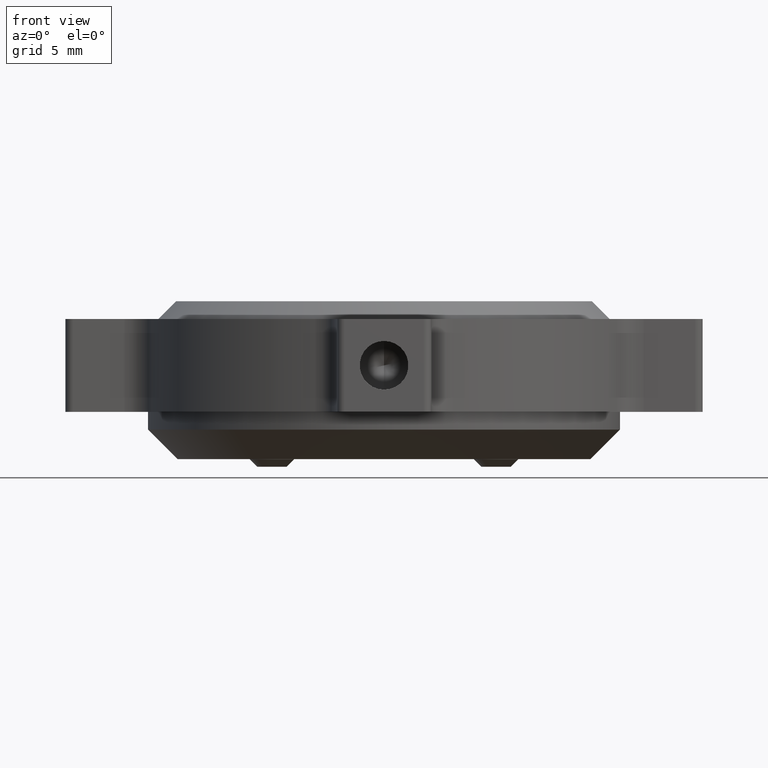
[diagram: clean part render]
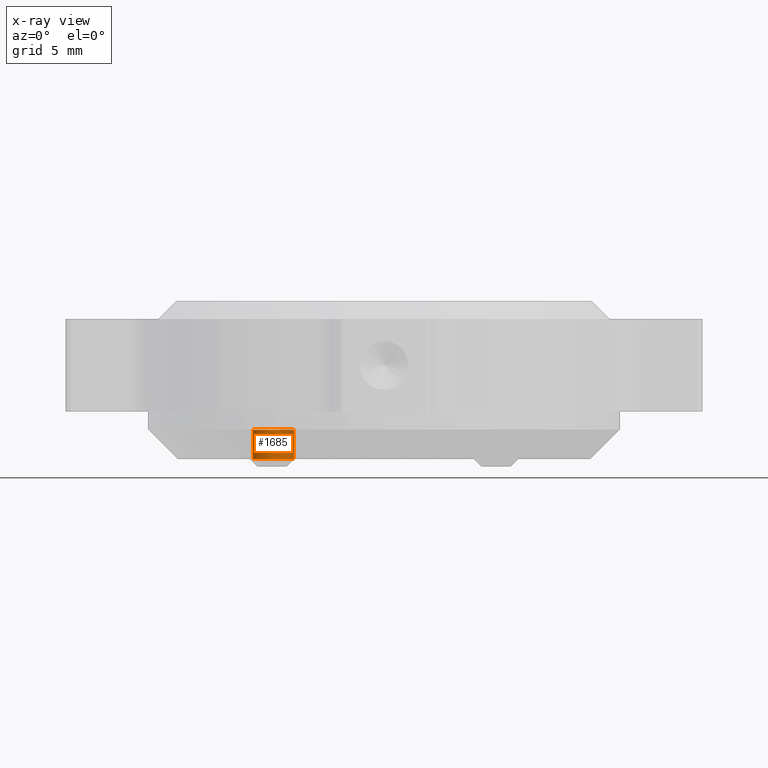
[diagram: x-ray — body ghosted, one internal face saturated and labeled with its STEP entity id]
A machine part, front view, then the same camera in x-ray: the body is ghosted and one INTERNAL B-rep face — a face not visible from any outside direction — is saturated and labeled: STEP entity #1685.
In plain terms, the highlighted cylindrical surface (edge-blend (fillet) strip) has radius 1.5 mm, axis along (0, 0, 1).
Its self-contained STEP definition (entity closure, byte-faithful):
#7 = CARTESIAN_POINT ( 'NONE',  ( -8.233138786382069085, 2.161662557750398950, 23.32967437858455639 ) ) ;
#21 = VERTEX_POINT ( 'NONE', #2503 ) ;
#73 = VERTEX_POINT ( 'NONE', #167 ) ;
#93 = EDGE_LOOP ( 'NONE', ( #753, #997, #1690, #1759 ) ) ;
#167 = CARTESIAN_POINT ( 'NONE',  ( -10.80261643107581726, 0.6131843908332059723, 23.82967437858455639 ) ) ;
#301 = LINE ( 'NONE', #7, #3105 ) ;
#619 = FACE_OUTER_BOUND ( 'NONE', #93, .T. ) ;
#753 = ORIENTED_EDGE ( 'NONE', *, *, #2161, .T. ) ;
#758 = VERTEX_POINT ( 'NONE', #2873 ) ;
#807 = EDGE_CURVE ( 'NONE', #758, #1837, #301, .T. ) ;
#834 = CARTESIAN_POINT ( 'NONE',  ( -9.517877608728953831, 1.387423474291795911, 23.82967437858455639 ) ) ;
#863 = CIRCLE ( 'NONE', #2468, 1.500000000000025091 ) ;
#944 = DIRECTION ( 'NONE',  ( 0.000000000000000000, 0.000000000000000000, -1.000000000000000000 ) ) ;
#992 = DIRECTION ( 'NONE',  ( 0.8564925482312415461, 0.5161593889723932183, 0.000000000000000000 ) ) ;
#997 = ORIENTED_EDGE ( 'NONE', *, *, #807, .T. ) ;
#1124 = CYLINDRICAL_SURFACE ( 'NONE', #1744, 1.500000000000025091 ) ;
#1342 = DIRECTION ( 'NONE',  ( -0.8564925482312415461, -0.5161593889723933293, 0.000000000000000000 ) ) ;
#1539 = VECTOR ( 'NONE', #2450, 1000.000000000000000 ) ;
#1665 = CARTESIAN_POINT ( 'NONE',  ( -9.517877608728953831, 1.387423474291795911, 25.82967437858455639 ) ) ;
#1685 = ADVANCED_FACE ( 'NONE', ( #619 ), #1124, .T. ) ;
#1690 = ORIENTED_EDGE ( 'NONE', *, *, #2804, .T. ) ;
#1744 = AXIS2_PLACEMENT_3D ( 'NONE', #2765, #2330, #1342 ) ;
#1759 = ORIENTED_EDGE ( 'NONE', *, *, #2051, .F. ) ;
#1837 = VERTEX_POINT ( 'NONE', #2298 ) ;
#1970 = DIRECTION ( 'NONE',  ( 0.000000000000000000, 0.000000000000000000, 1.000000000000000000 ) ) ;
#2051 = EDGE_CURVE ( 'NONE', #73, #21, #2915, .T. ) ;
#2161 = EDGE_CURVE ( 'NONE', #73, #758, #2358, .T. ) ;
#2213 = AXIS2_PLACEMENT_3D ( 'NONE', #834, #2245, #2537 ) ;
#2245 = DIRECTION ( 'NONE',  ( -0.000000000000000000, -0.000000000000000000, 1.000000000000000000 ) ) ;
#2298 = CARTESIAN_POINT ( 'NONE',  ( -8.233138786382090402, 2.161662557750386071, 25.82967437858455639 ) ) ;
#2330 = DIRECTION ( 'NONE',  ( 0.000000000000000000, 0.000000000000000000, 1.000000000000000000 ) ) ;
#2358 = CIRCLE ( 'NONE', #2213, 1.500000000000025091 ) ;
#2450 = DIRECTION ( 'NONE',  ( 0.000000000000000000, 0.000000000000000000, 1.000000000000000000 ) ) ;
#2468 = AXIS2_PLACEMENT_3D ( 'NONE', #1665, #944, #992 ) ;
#2503 = CARTESIAN_POINT ( 'NONE',  ( -10.80261643107581726, 0.6131843908332059723, 25.82967437858455639 ) ) ;
#2537 = DIRECTION ( 'NONE',  ( 0.8564925482312415461, 0.5161593889723932183, 0.000000000000000000 ) ) ;
#2670 = CARTESIAN_POINT ( 'NONE',  ( -10.80261643107583680, 0.6131843908331930937, 23.32967437858455639 ) ) ;
#2765 = CARTESIAN_POINT ( 'NONE',  ( -9.517877608728953831, 1.387423474291795911, 23.32967437858455639 ) ) ;
#2804 = EDGE_CURVE ( 'NONE', #1837, #21, #863, .T. ) ;
#2873 = CARTESIAN_POINT ( 'NONE',  ( -8.233138786382090402, 2.161662557750386071, 23.82967437858455639 ) ) ;
#2915 = LINE ( 'NONE', #2670, #1539 ) ;
#3105 = VECTOR ( 'NONE', #1970, 1000.000000000000000 ) ;